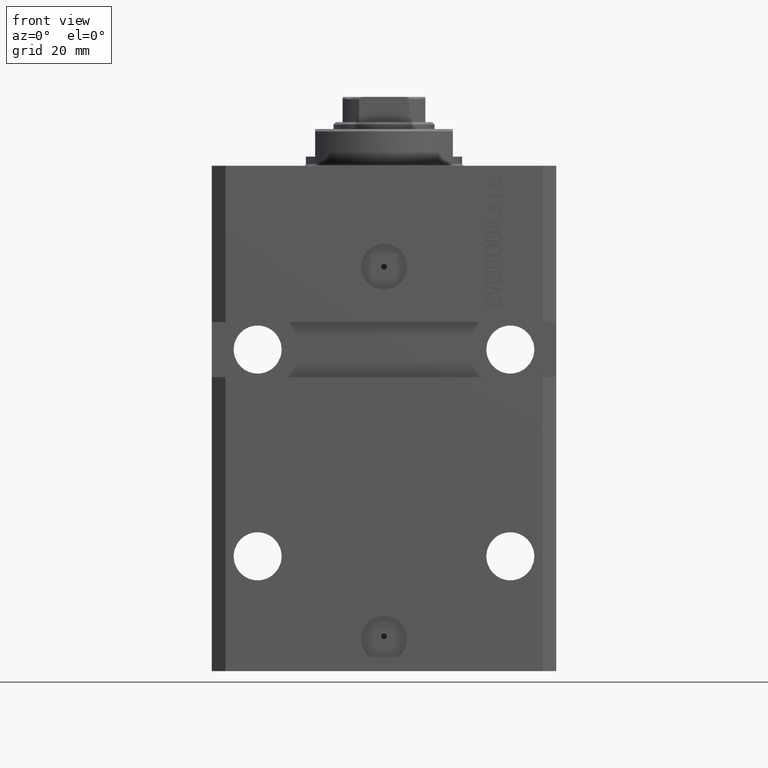
[diagram: clean part render]
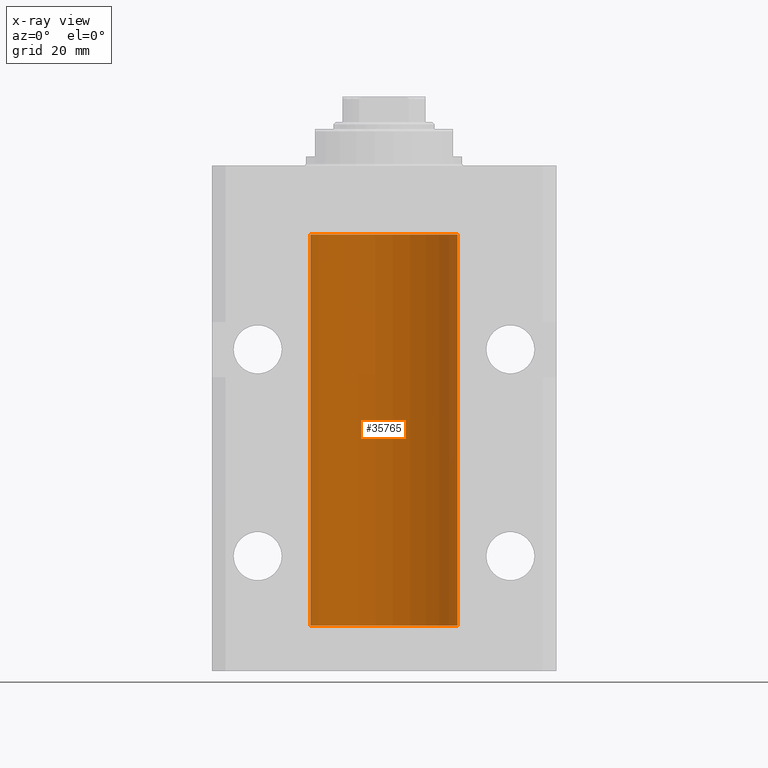
[diagram: x-ray — body ghosted, one internal face saturated and labeled with its STEP entity id]
A machine part, front view, then the same camera in x-ray: the body is ghosted and one INTERNAL B-rep face — a face not visible from any outside direction — is saturated and labeled: STEP entity #35765.
In plain terms, the highlighted cylindrical surface (partial cylindrical patch) has radius 16 mm, axis along (0, 0, 1).
Its self-contained STEP definition (entity closure, byte-faithful):
#1227 = CARTESIAN_POINT ( 'NONE',  ( 0.000000000000000000, 0.000000000000000000, -100.0999999999999943 ) ) ;
#2262 = EDGE_CURVE ( 'NONE', #9689, #39236, #21824, .T. ) ;
#2482 = DIRECTION ( 'NONE',  ( -0.000000000000000000, -0.000000000000000000, 1.000000000000000000 ) ) ;
#2675 = CYLINDRICAL_SURFACE ( 'NONE', #31613, 16.00000000000000000 ) ;
#4697 = DIRECTION ( 'NONE',  ( -0.000000000000000000, -0.000000000000000000, 1.000000000000000000 ) ) ;
#5118 = CARTESIAN_POINT ( 'NONE',  ( -16.00000000000000000, 1.959434878635765131E-15, -100.0999999999999943 ) ) ;
#5466 = B_SPLINE_CURVE_WITH_KNOTS ( 'NONE', 3,
 ( #16956, #9787, #42357, #27500, #21009, #45962, #43060, #9552, #24368, #6195, #31809, #46426, #28201, #10260 ),
 .UNSPECIFIED., .F., .F.,
 ( 4, 2, 2, 2, 2, 2, 4 ),
 ( 1.003919637555167698E-18, 0.0002442776652680894158, 0.0004885553305361776391, 0.0009771106610723541940, 0.001221388326340463017, 0.001465665991608572274, 0.001954221322144760863 ),
 .UNSPECIFIED. ) ;
#5514 = CARTESIAN_POINT ( 'NONE',  ( -16.00000000000013145, 3.685127038166941002E-13, -22.62500000000341771 ) ) ;
#5743 = CARTESIAN_POINT ( 'NONE',  ( -15.98844267028591482, 0.6088369347963316081, -22.16324735024328518 ) ) ;
#6195 = CARTESIAN_POINT ( 'NONE',  ( -15.99070426498503572, 0.5462220647145610286, -98.31460064614144301 ) ) ;
#8862 = CARTESIAN_POINT ( 'NONE',  ( -15.99707730059171240, 0.3150375992092407373, -21.45402333202571654 ) ) ;
#9100 = CARTESIAN_POINT ( 'NONE',  ( -15.98778717651346071, 0.6250289588122140971, -22.08131585687052478 ) ) ;
#9552 = CARTESIAN_POINT ( 'NONE',  ( -15.98778717651346604, 0.6250289588122097673, -98.08131585687051768 ) ) ;
#9651 = LINE ( 'NONE', #24235, #17030 ) ;
#9689 = VERTEX_POINT ( 'NONE', #11096 ) ;
#9787 = CARTESIAN_POINT ( 'NONE',  ( -16.00000000000000711, 0.08259886010188650929, -97.37500000000000000 ) ) ;
#9850 = DIRECTION ( 'NONE',  ( 1.000000000000000000, 0.000000000000000000, 0.000000000000000000 ) ) ;
#10023 = CARTESIAN_POINT ( 'NONE',  ( -16.00000000000000000, 1.643679961284177128E-16, -21.37499999999999645 ) ) ;
#10260 = CARTESIAN_POINT ( 'NONE',  ( -16.00000000000013145, 3.685127046438747128E-13, -98.62500000000343903 ) ) ;
#11096 = CARTESIAN_POINT ( 'NONE',  ( 16.00000000000000000, 0.000000000000000000, -100.0999999999999943 ) ) ;
#11153 = LINE ( 'NONE', #32947, #39951 ) ;
#11719 = EDGE_CURVE ( 'NONE', #41606, #27503, #44644, .T. ) ;
#12932 = VERTEX_POINT ( 'NONE', #34572 ) ;
#13622 = CARTESIAN_POINT ( 'NONE',  ( -16.00000000000013145, 3.685127038166941002E-13, -22.62500000000341771 ) ) ;
#13687 = CARTESIAN_POINT ( 'NONE',  ( -16.00000000000000000, -1.303459030566954747E-14, -97.37500000000000000 ) ) ;
#14244 = DIRECTION ( 'NONE',  ( 0.000000000000000000, 0.000000000000000000, 1.000000000000000000 ) ) ;
#14960 = DIRECTION ( 'NONE',  ( 1.000000000000000000, 0.000000000000000000, 0.000000000000000000 ) ) ;
#14967 = AXIS2_PLACEMENT_3D ( 'NONE', #1227, #15797, #30409 ) ;
#15030 = VECTOR ( 'NONE', #33144, 1000.000000000000000 ) ;
#15414 = CARTESIAN_POINT ( 'NONE',  ( 16.00000000000000000, 0.000000000000000000, -100.0999999999999943 ) ) ;
#15702 = ORIENTED_EDGE ( 'NONE', *, *, #36644, .T. ) ;
#15797 = DIRECTION ( 'NONE',  ( 0.000000000000000000, 0.000000000000000000, 1.000000000000000000 ) ) ;
#16264 = CARTESIAN_POINT ( 'NONE',  ( -15.98779057735153941, 0.6249419637998100407, -21.83670145863507273 ) ) ;
#16578 = VERTEX_POINT ( 'NONE', #13622 ) ;
#16956 = CARTESIAN_POINT ( 'NONE',  ( -16.00000000000000000, -1.303459030566954747E-14, -97.37500000000000000 ) ) ;
#17030 = VECTOR ( 'NONE', #2482, 1000.000000000000000 ) ;
#18994 = VECTOR ( 'NONE', #41040, 1000.000000000000000 ) ;
#19609 = CARTESIAN_POINT ( 'NONE',  ( -15.99934216141748244, 0.1636497843296417787, -21.39126528029306229 ) ) ;
#20255 = ORIENTED_EDGE ( 'NONE', *, *, #34268, .F. ) ;
#21009 = CARTESIAN_POINT ( 'NONE',  ( -15.99548640841682712, 0.3843705577988784650, -97.50046628527007897 ) ) ;
#21824 = CIRCLE ( 'NONE', #14967, 16.00000000000000000 ) ;
#22690 = VERTEX_POINT ( 'NONE', #13687 ) ;
#22962 = ORIENTED_EDGE ( 'NONE', *, *, #11719, .F. ) ;
#23057 = LINE ( 'NONE', #15414, #15030 ) ;
#23176 = ORIENTED_EDGE ( 'NONE', *, *, #44700, .T. ) ;
#23429 = CARTESIAN_POINT ( 'NONE',  ( -16.00000000000000000, 0.1631714642025800244, -22.62499999999985789 ) ) ;
#23549 = B_SPLINE_CURVE_WITH_KNOTS ( 'NONE', 3,
 ( #41423, #34945, #19609, #8862, #30641, #23914, #16264, #9100, #5743, #44792, #45258, #34717, #23429, #5514 ),
 .UNSPECIFIED., .F., .F.,
 ( 4, 2, 2, 2, 2, 2, 4 ),
 ( 1.597328219370744179E-19, 0.0002442776652680942405, 0.0004885553305361882643, 0.0009771106610723839011, 0.001221388326340481665, 0.001465665991608579430, 0.001954221322144767369 ),
 .UNSPECIFIED. ) ;
#23914 = CARTESIAN_POINT ( 'NONE',  ( -15.99070653155267685, 0.5573233280232986475, -21.67348148680506625 ) ) ;
#24235 = CARTESIAN_POINT ( 'NONE',  ( -16.00000000000000000, 1.959434878635765131E-15, -100.0999999999999943 ) ) ;
#24365 = ORIENTED_EDGE ( 'NONE', *, *, #38920, .F. ) ;
#24368 = CARTESIAN_POINT ( 'NONE',  ( -15.98844267028590949, 0.6088369347963275002, -98.16324735024325321 ) ) ;
#24418 = CIRCLE ( 'NONE', #25848, 16.00000000000000000 ) ;
#24436 = ORIENTED_EDGE ( 'NONE', *, *, #2262, .F. ) ;
#24524 = EDGE_CURVE ( 'NONE', #22690, #38595, #5466, .T. ) ;
#24662 = DIRECTION ( 'NONE',  ( -0.000000000000000000, -0.000000000000000000, 1.000000000000000000 ) ) ;
#24829 = EDGE_CURVE ( 'NONE', #12932, #27503, #24418, .T. ) ;
#25240 = CARTESIAN_POINT ( 'NONE',  ( -16.00000000000000000, 1.959434878635765131E-15, -15.00000000000000000 ) ) ;
#25848 = AXIS2_PLACEMENT_3D ( 'NONE', #47068, #14244, #14960 ) ;
#27296 = CARTESIAN_POINT ( 'NONE',  ( -16.00000000000000000, 1.959434878635765131E-15, -100.0999999999999943 ) ) ;
#27500 = CARTESIAN_POINT ( 'NONE',  ( -15.99707730059171240, 0.3150375992092294686, -97.45402333202572720 ) ) ;
#27503 = VERTEX_POINT ( 'NONE', #25240 ) ;
#28201 = CARTESIAN_POINT ( 'NONE',  ( -15.99999999999998934, 0.1631714642025804407, -98.62499999999987210 ) ) ;
#30325 = ORIENTED_EDGE ( 'NONE', *, *, #24524, .T. ) ;
#30409 = DIRECTION ( 'NONE',  ( 1.000000000000000000, 0.000000000000000000, 0.000000000000000000 ) ) ;
#30641 = CARTESIAN_POINT ( 'NONE',  ( -15.99548640841683067, 0.3843705577988847377, -21.50046628527008608 ) ) ;
#31613 = AXIS2_PLACEMENT_3D ( 'NONE', #42412, #24662, #9850 ) ;
#31739 = CARTESIAN_POINT ( 'NONE',  ( -16.00000000000013145, 3.685127046438747128E-13, -98.62500000000343903 ) ) ;
#31809 = CARTESIAN_POINT ( 'NONE',  ( -15.99228023727724057, 0.5003781296993360383, -98.38347829554236057 ) ) ;
#32947 = CARTESIAN_POINT ( 'NONE',  ( -16.00000000000000000, 1.959434878635765131E-15, -100.0999999999999943 ) ) ;
#33144 = DIRECTION ( 'NONE',  ( -0.000000000000000000, -0.000000000000000000, 1.000000000000000000 ) ) ;
#34268 = EDGE_CURVE ( 'NONE', #39236, #38595, #11153, .T. ) ;
#34572 = CARTESIAN_POINT ( 'NONE',  ( 16.00000000000000000, 0.000000000000000000, -15.00000000000000000 ) ) ;
#34717 = CARTESIAN_POINT ( 'NONE',  ( -15.99711699979842017, 0.3253759916140657737, -22.55856151623175521 ) ) ;
#34799 = EDGE_LOOP ( 'NONE', ( #20255, #24436, #23176, #46115, #22962, #15702, #24365, #30325 ) ) ;
#34945 = CARTESIAN_POINT ( 'NONE',  ( -16.00000000000000711, 0.08259886010189904093, -21.37500000000000000 ) ) ;
#35765 = ADVANCED_FACE ( 'NONE', ( #46254 ), #2675, .F. ) ;
#36644 = EDGE_CURVE ( 'NONE', #41606, #16578, #23549, .T. ) ;
#38595 = VERTEX_POINT ( 'NONE', #31739 ) ;
#38920 = EDGE_CURVE ( 'NONE', #22690, #16578, #9651, .T. ) ;
#39236 = VERTEX_POINT ( 'NONE', #27296 ) ;
#39951 = VECTOR ( 'NONE', #4697, 1000.000000000000000 ) ;
#41040 = DIRECTION ( 'NONE',  ( -0.000000000000000000, -0.000000000000000000, 1.000000000000000000 ) ) ;
#41423 = CARTESIAN_POINT ( 'NONE',  ( -16.00000000000000000, 1.643679961284177128E-16, -21.37499999999999645 ) ) ;
#41606 = VERTEX_POINT ( 'NONE', #10023 ) ;
#42357 = CARTESIAN_POINT ( 'NONE',  ( -15.99934216141748244, 0.1636497843296308152, -97.39126528029306940 ) ) ;
#42412 = CARTESIAN_POINT ( 'NONE',  ( 0.000000000000000000, 0.000000000000000000, -100.0999999999999943 ) ) ;
#43060 = CARTESIAN_POINT ( 'NONE',  ( -15.98779057735153941, 0.6249419637998017141, -97.83670145863504786 ) ) ;
#44644 = LINE ( 'NONE', #5118, #18994 ) ;
#44700 = EDGE_CURVE ( 'NONE', #9689, #12932, #23057, .T. ) ;
#44792 = CARTESIAN_POINT ( 'NONE',  ( -15.99070426498503217, 0.5462220647145618058, -22.31460064614143590 ) ) ;
#45258 = CARTESIAN_POINT ( 'NONE',  ( -15.99228023727724413, 0.5003781296993413674, -22.38347829554236057 ) ) ;
#45962 = CARTESIAN_POINT ( 'NONE',  ( -15.99070653155267685, 0.5573233280232928744, -97.67348148680505915 ) ) ;
#46115 = ORIENTED_EDGE ( 'NONE', *, *, #24829, .T. ) ;
#46254 = FACE_OUTER_BOUND ( 'NONE', #34799, .T. ) ;
#46426 = CARTESIAN_POINT ( 'NONE',  ( -15.99711699979841661, 0.3253759916140614439, -98.55856151623174810 ) ) ;
#47068 = CARTESIAN_POINT ( 'NONE',  ( 0.000000000000000000, 0.000000000000000000, -15.00000000000000000 ) ) ;